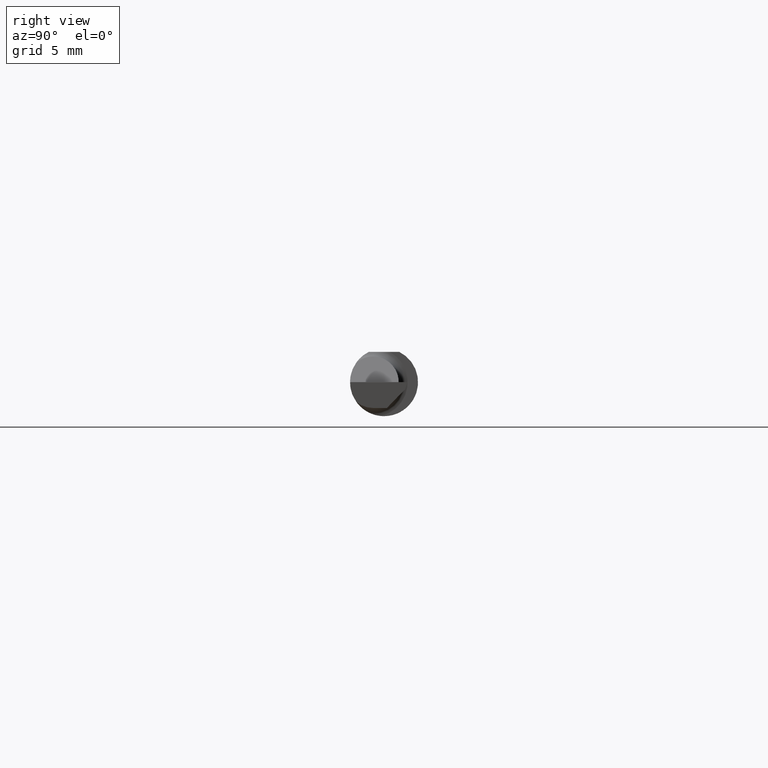
[diagram: clean part render]
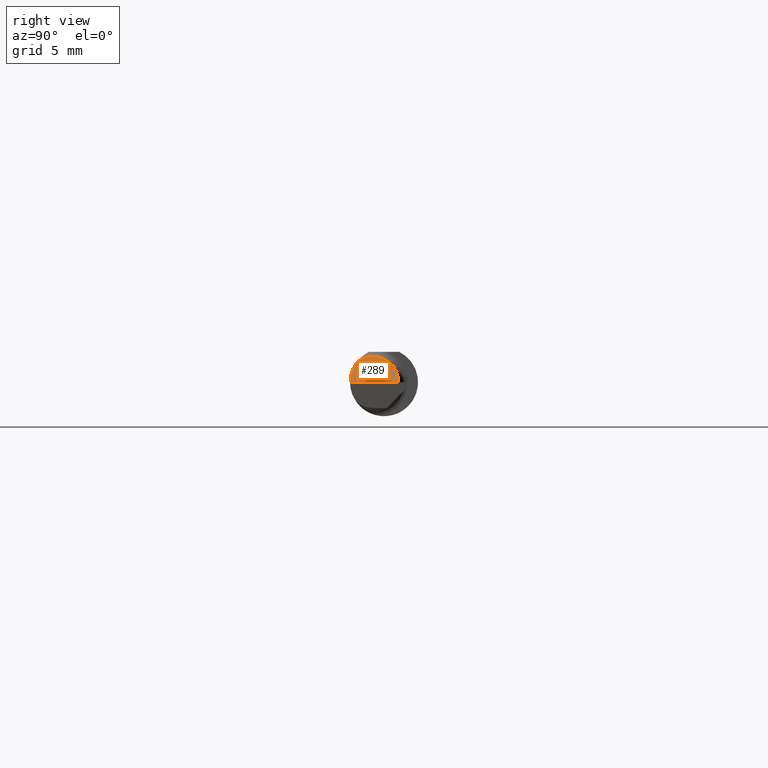
[diagram: same view with one face highlighted and labeled with its STEP entity id]
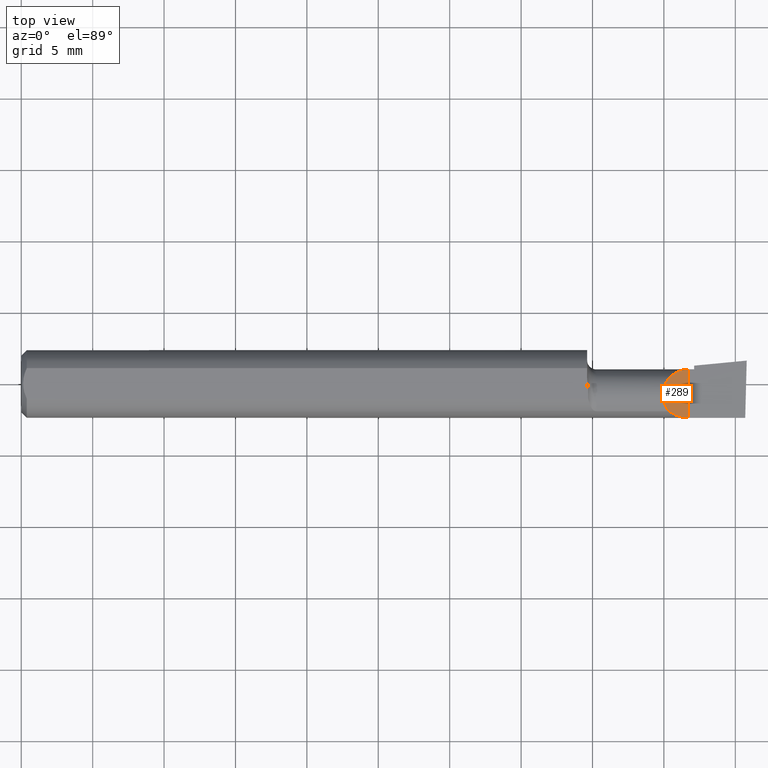
[diagram: same view with one face highlighted and labeled with its STEP entity id]
A machine part, right view. The second image highlights one B-rep face of the part: STEP entity #289.
A second angle (top view) of the same face is appended — the face is thin or edge-on in the first view.
In plain terms, the highlighted planar face has unit normal (-0.7071, 0, -0.7071).
Its self-contained STEP definition (entity closure, byte-faithful):
#11 = CARTESIAN_POINT ( 'NONE',  ( 1.840000000000000080, 0.04039999999999989433, 1.959434878635762025E-17 ) ) ;
#14 = FACE_OUTER_BOUND ( 'NONE', #354, .T. ) ;
#47 = CARTESIAN_POINT ( 'NONE',  ( 1.785481776797905207, -0.07608366013071832246, 0.05451822320209408906 ) ) ;
#51 = ORIENTED_EDGE ( 'NONE', *, *, #93, .F. ) ;
#70 = VERTEX_POINT ( 'NONE', #11 ) ;
#93 = EDGE_CURVE ( 'NONE', #102, #619, #448, .T. ) ;
#102 = VERTEX_POINT ( 'NONE', #429 ) ;
#104 = AXIS2_PLACEMENT_3D ( 'NONE', #204, #113, #407 ) ;
#113 = DIRECTION ( 'NONE',  ( -0.7071067811865433539, 0.000000000000000000, -0.7071067811865516806 ) ) ;
#189 = CARTESIAN_POINT ( 'NONE',  ( 1.770398118553869304, 0.04039999999999996372, 0.06960188144613037309 ) ) ;
#204 = CARTESIAN_POINT ( 'NONE',  ( 1.840000000000000080, -0.2500000000000000555, 1.959434878635762025E-17 ) ) ;
#207 = PLANE ( 'NONE',  #104 ) ;
#214 = CARTESIAN_POINT ( 'NONE',  ( 1.840000000000000080, -0.2500000000000000555, 1.959434878635762025E-17 ) ) ;
#275 = EDGE_CURVE ( 'NONE', #102, #70, #553, .T. ) ;
#289 = ADVANCED_FACE ( 'NONE', ( #14 ), #207, .F. ) ;
#317 = ORIENTED_EDGE ( 'NONE', *, *, #275, .T. ) ;
#354 = EDGE_LOOP ( 'NONE', ( #461, #51, #317 ) ) ;
#383 = CARTESIAN_POINT ( 'NONE',  ( 1.840000000000000080, -0.09360000000000005815, 1.959434878635762025E-17 ) ) ;
#395 = CARTESIAN_POINT ( 'NONE',  ( 1.785481776797905207, -0.07608366013071832246, 0.05451822320209408906 ) ) ;
#407 = DIRECTION ( 'NONE',  ( -0.7071067811865516806, 0.000000000000000000, 0.7071067811865433539 ) ) ;
#429 = CARTESIAN_POINT ( 'NONE',  ( 1.840000000000000080, -0.09360000000000005815, 1.959434878635762025E-17 ) ) ;
#445 = DIRECTION ( 'NONE',  ( -0.000000000000000000, 1.000000000000000000, -0.000000000000000000 ) ) ;
#448 =( BOUNDED_CURVE ( )  B_SPLINE_CURVE ( 3, ( #383, #575, #582, #47 ),
 .UNSPECIFIED., .F., .T. ) 
 B_SPLINE_CURVE_WITH_KNOTS ( ( 4, 4 ),
 ( 4.712388980384689674, 5.334140324029830182 ),
 .UNSPECIFIED. ) 
 CURVE ( )  GEOMETRIC_REPRESENTATION_ITEM ( )  RATIONAL_B_SPLINE_CURVE ( ( 1.000000000000000000, 0.9680440490283178656, 0.9680440490283178656, 1.000000000000000000 ) ) 
 REPRESENTATION_ITEM ( '' )  );
#461 = ORIENTED_EDGE ( 'NONE', *, *, #564, .F. ) ;
#482 = CARTESIAN_POINT ( 'NONE',  ( 1.840000000000000080, 0.04039999999999989433, 1.959434878635762025E-17 ) ) ;
#487 = CARTESIAN_POINT ( 'NONE',  ( 1.785481776797905207, -0.07608366013071832246, 0.05451822320209408906 ) ) ;
#553 = LINE ( 'NONE', #214, #572 ) ;
#564 = EDGE_CURVE ( 'NONE', #619, #70, #622, .T. ) ;
#572 = VECTOR ( 'NONE', #445, 39.37007874015748143 ) ;
#575 = CARTESIAN_POINT ( 'NONE',  ( 1.820282210334661199, -0.09360000000000003040, 0.01971778966533898128 ) ) ;
#582 = CARTESIAN_POINT ( 'NONE',  ( 1.801509571749044802, -0.08756847698998002083, 0.03849042825095470161 ) ) ;
#618 = CARTESIAN_POINT ( 'NONE',  ( 1.740893772288688801, -0.02263899945514348880, 0.09910622771130987718 ) ) ;
#619 = VERTEX_POINT ( 'NONE', #395 ) ;
#622 =( BOUNDED_CURVE ( )  B_SPLINE_CURVE ( 3, ( #487, #618, #189, #482 ),
 .UNSPECIFIED., .F., .F. ) 
 B_SPLINE_CURVE_WITH_KNOTS ( ( 4, 4 ),
 ( 5.587886473277671406, 7.853981633974482790 ),
 .UNSPECIFIED. ) 
 CURVE ( )  GEOMETRIC_REPRESENTATION_ITEM ( )  RATIONAL_B_SPLINE_CURVE ( ( 1.000000000000000000, 0.6159343746860725943, 0.6159343746860725943, 1.000000000000000000 ) ) 
 REPRESENTATION_ITEM ( '' )  );